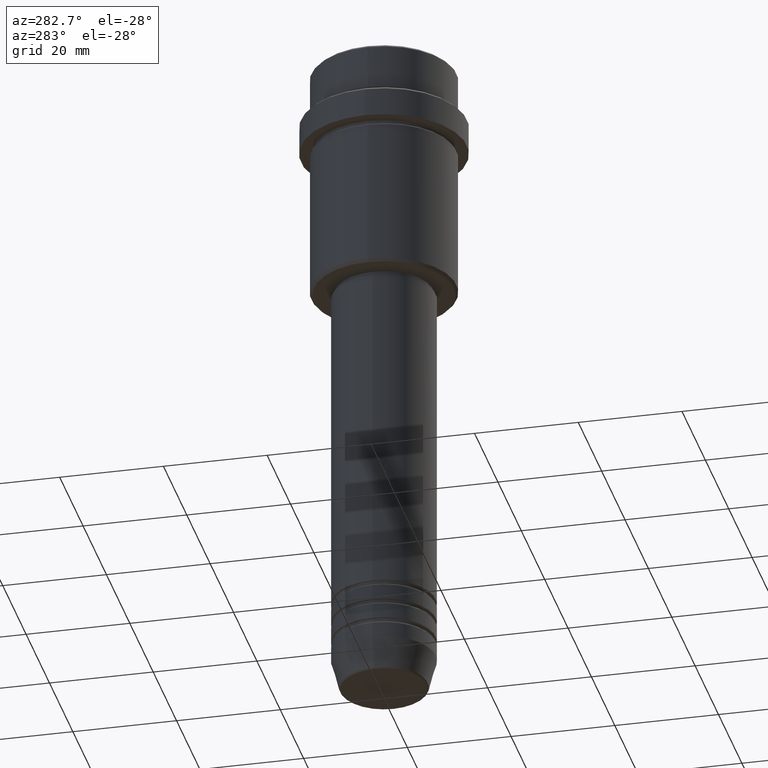
[diagram: clean part render]
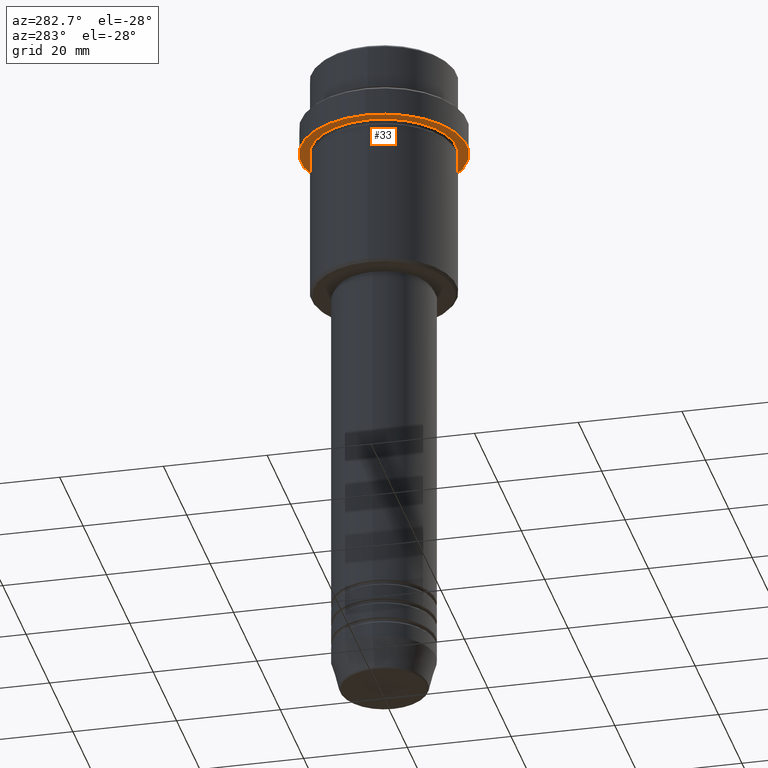
[diagram: same view with one face highlighted and labeled with its STEP entity id]
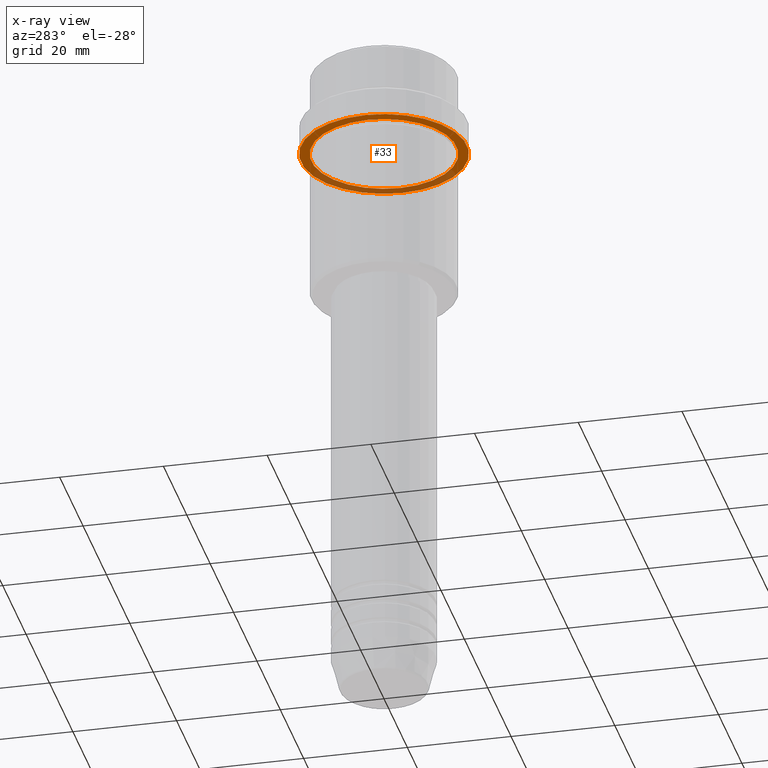
[diagram: x-ray of the same camera — body ghosted, the highlighted face saturated]
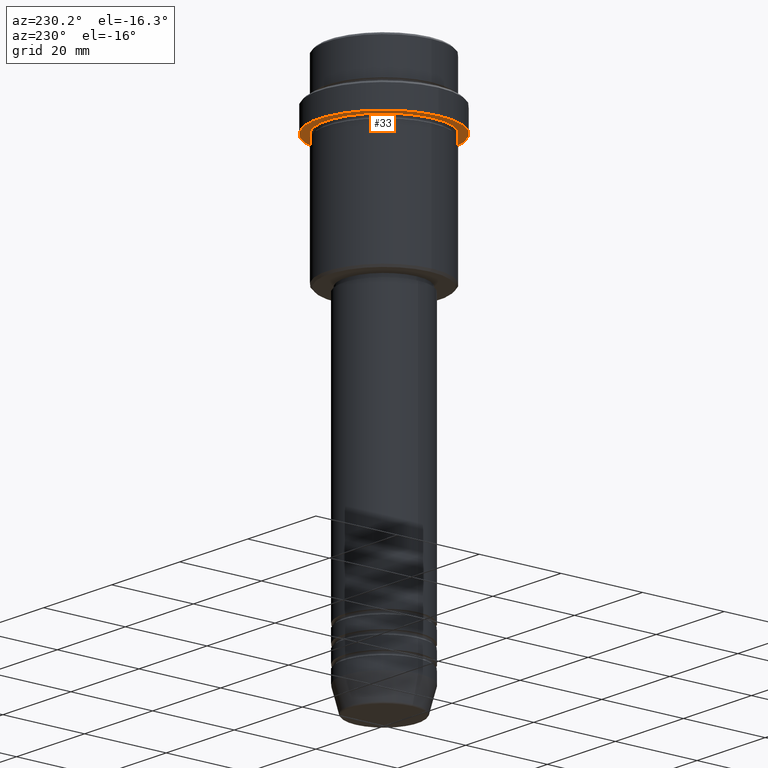
[diagram: same view with one face highlighted and labeled with its STEP entity id]
A machine part, auxiliary view. The second image highlights one B-rep face of the part: STEP entity #33.
The next image is the same camera in x-ray: the body ghosted, the highlighted face saturated — about 34% of this face is hidden behind the body in this view.
A second angle (auxiliary view) of the same face is appended — the face is thin or edge-on in the first view.
In plain terms, the highlighted planar face has unit normal (0, 0, -1).
Its self-contained STEP definition (entity closure, byte-faithful):
#26 = CARTESIAN_POINT ( 'NONE',  ( 15.99999999999998579, 0.000000000000000000, -16.00000000000000000 ) ) ;
#33 = ADVANCED_FACE ( 'NONE', ( #1056, #94 ), #736, .T. ) ;
#47 = DIRECTION ( 'NONE',  ( -1.000000000000000000, 0.000000000000000000, 0.000000000000000000 ) ) ;
#62 = AXIS2_PLACEMENT_3D ( 'NONE', #1189, #206, #124 ) ;
#82 = DIRECTION ( 'NONE',  ( 1.000000000000000000, 0.000000000000000000, 0.000000000000000000 ) ) ;
#87 = CIRCLE ( 'NONE', #200, 13.99999999999998224 ) ;
#94 = FACE_OUTER_BOUND ( 'NONE', #771, .T. ) ;
#104 = VERTEX_POINT ( 'NONE', #1393 ) ;
#124 = DIRECTION ( 'NONE',  ( -1.000000000000000000, 0.000000000000000000, -0.000000000000000000 ) ) ;
#167 = EDGE_CURVE ( 'NONE', #973, #104, #710, .T. ) ;
#200 = AXIS2_PLACEMENT_3D ( 'NONE', #353, #1132, #47 ) ;
#206 = DIRECTION ( 'NONE',  ( 0.000000000000000000, 0.000000000000000000, -1.000000000000000000 ) ) ;
#222 = CARTESIAN_POINT ( 'NONE',  ( 0.000000000000000000, 0.000000000000000000, -16.00000000000000000 ) ) ;
#248 = VERTEX_POINT ( 'NONE', #1130 ) ;
#299 = DIRECTION ( 'NONE',  ( -0.000000000000000000, -0.000000000000000000, 1.000000000000000000 ) ) ;
#321 = CARTESIAN_POINT ( 'NONE',  ( 0.000000000000000000, 0.000000000000000000, -16.00000000000000000 ) ) ;
#353 = CARTESIAN_POINT ( 'NONE',  ( 0.000000000000000000, 0.000000000000000000, -16.00000000000000000 ) ) ;
#448 = AXIS2_PLACEMENT_3D ( 'NONE', #858, #299, #848 ) ;
#454 = ORIENTED_EDGE ( 'NONE', *, *, #547, .T. ) ;
#547 = EDGE_CURVE ( 'NONE', #104, #973, #87, .T. ) ;
#550 = DIRECTION ( 'NONE',  ( -0.000000000000000000, -0.000000000000000000, 1.000000000000000000 ) ) ;
#666 = CIRCLE ( 'NONE', #448, 15.99999999999998579 ) ;
#710 = CIRCLE ( 'NONE', #1158, 13.99999999999998224 ) ;
#714 = AXIS2_PLACEMENT_3D ( 'NONE', #321, #835, #82 ) ;
#736 = PLANE ( 'NONE',  #62 ) ;
#771 = EDGE_LOOP ( 'NONE', ( #994, #921 ) ) ;
#782 = CARTESIAN_POINT ( 'NONE',  ( 13.99999999999998224, 1.714505518806292469E-15, -16.00000000000000000 ) ) ;
#835 = DIRECTION ( 'NONE',  ( -0.000000000000000000, -0.000000000000000000, 1.000000000000000000 ) ) ;
#848 = DIRECTION ( 'NONE',  ( 1.000000000000000000, 0.000000000000000000, 0.000000000000000000 ) ) ;
#858 = CARTESIAN_POINT ( 'NONE',  ( 0.000000000000000000, 0.000000000000000000, -16.00000000000000000 ) ) ;
#877 = CIRCLE ( 'NONE', #714, 15.99999999999998579 ) ;
#898 = EDGE_CURVE ( 'NONE', #248, #1217, #877, .T. ) ;
#921 = ORIENTED_EDGE ( 'NONE', *, *, #898, .F. ) ;
#973 = VERTEX_POINT ( 'NONE', #782 ) ;
#981 = DIRECTION ( 'NONE',  ( -1.000000000000000000, 0.000000000000000000, 0.000000000000000000 ) ) ;
#994 = ORIENTED_EDGE ( 'NONE', *, *, #1406, .F. ) ;
#1056 = FACE_BOUND ( 'NONE', #1276, .T. ) ;
#1130 = CARTESIAN_POINT ( 'NONE',  ( -15.99999999999998579, 1.959434878635763554E-15, -16.00000000000000000 ) ) ;
#1132 = DIRECTION ( 'NONE',  ( -0.000000000000000000, -0.000000000000000000, 1.000000000000000000 ) ) ;
#1151 = ORIENTED_EDGE ( 'NONE', *, *, #167, .T. ) ;
#1158 = AXIS2_PLACEMENT_3D ( 'NONE', #222, #550, #981 ) ;
#1189 = CARTESIAN_POINT ( 'NONE',  ( 0.000000000000000000, 15.99999999999998579, -16.00000000000000000 ) ) ;
#1217 = VERTEX_POINT ( 'NONE', #26 ) ;
#1276 = EDGE_LOOP ( 'NONE', ( #454, #1151 ) ) ;
#1393 = CARTESIAN_POINT ( 'NONE',  ( -13.99999999999998224, 0.000000000000000000, -16.00000000000000000 ) ) ;
#1406 = EDGE_CURVE ( 'NONE', #1217, #248, #666, .T. ) ;